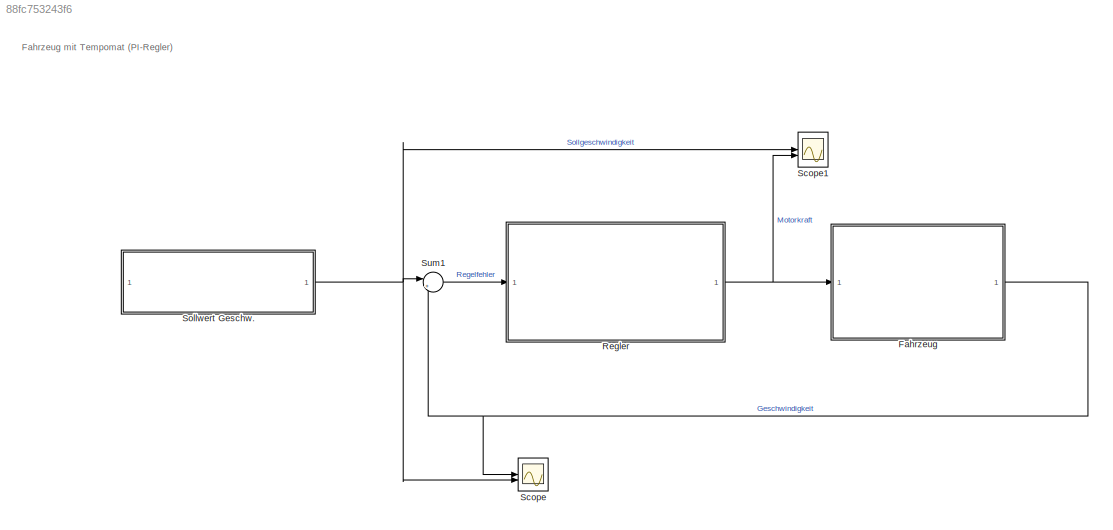
MODEL slx_88fc753243f6
KIND model
CONFIG AbsTol = auto
CONFIG EnableMultiTasking = on
CONFIG FixedStep = dtSim
CONFIG MaxStep = auto
CONFIG MinStep = auto
CONFIG RelTol = 1e-8
CONFIG SampleTimeConstraint = Unconstrained
CONFIG SolverName = FixedStepAuto
CONFIG StartTime = 0.0
CONFIG StopTime = tEnd
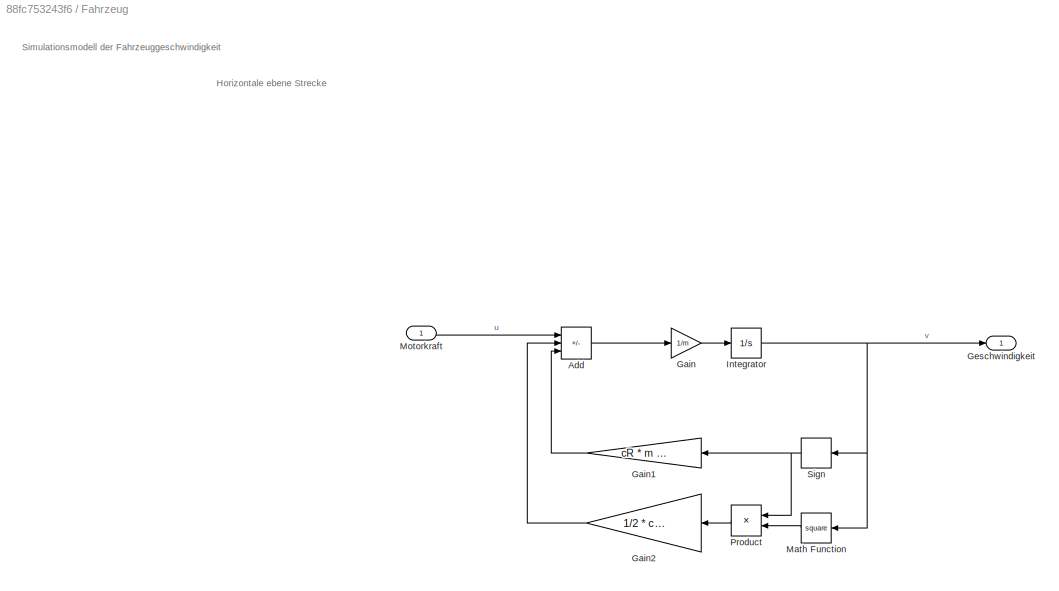
BLOCK [SubSystem] Fahrzeug
BLOCK [Sum] Fahrzeug/Add
  IconShape = rectangular
  Inputs = +--
BLOCK [Gain] Fahrzeug/Gain
  Gain = 1/m
BLOCK [Gain] Fahrzeug/Gain1
  Gain = cR * m * g
BLOCK [Gain] Fahrzeug/Gain2
  Gain = 1/2 * cW * rho * A
BLOCK [Outport] Fahrzeug/Geschwindigkeit
  VectorParamsAs1DForOutWhenUnconnected = off
BLOCK [Integrator] Fahrzeug/Integrator
BLOCK [Math] Fahrzeug/Math Function
  Operator = square
BLOCK [Inport] Fahrzeug/Motorkraft
BLOCK [Product] Fahrzeug/Product
BLOCK [Signum] Fahrzeug/Sign
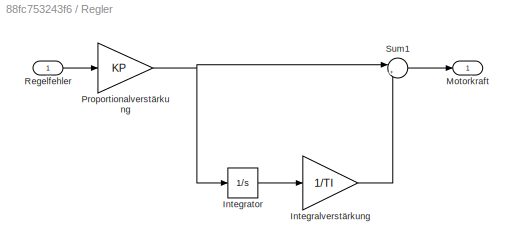
BLOCK [SubSystem] Regler
BLOCK [Gain] Regler/Integralverstärkung
  Gain = 1/TI
BLOCK [Integrator] Regler/Integrator
BLOCK [Outport] Regler/Motorkraft
BLOCK [Gain] Regler/Proportionalverstärkung
  Gain = KP
BLOCK [Inport] Regler/Regelfehler
BLOCK [Sum] Regler/Sum1
  Inputs = |++
BLOCK [Scope] Scope
  Floating = off
  NumInputPorts = 2
  ScopeSpecificationString = Simulink.scopes.TimeScopeBlockCfg('CurrentConfiguration', extmgr.ConfigurationSet(extmgr.Configuration('Core','General UI',true),extmgr.Configuration('Core','Source UI',true),extmgr.Configuration('Sources','WiredSimulink',true),extmgr.Configuration('Visuals','Time Domain',true,'SerializedDisplays',{struct('MinYLimReal','-5.20084','MaxYLimReal','46.80756','YLabelReal','','MinYLimMag','0.00000','Max...<+1396ch>
BLOCK [Scope] Scope1
  Floating = off
  NumInputPorts = 2
  ScopeSpecificationString = Simulink.scopes.TimeScopeBlockCfg('CurrentConfiguration', extmgr.ConfigurationSet(extmgr.Configuration('Core','General UI',true),extmgr.Configuration('Core','Source UI',true),extmgr.Configuration('Sources','WiredSimulink',true,'DataLoggingVariableName','ScopeData1'),extmgr.Configuration('Visuals','Time Domain',true,'SerializedDisplays',{struct('MinYLimReal','-127.63316','MaxYLimReal','1148.69844',...<+1446ch>
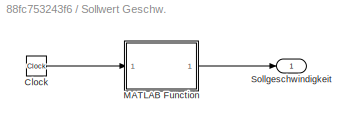
BLOCK [SubSystem] Sollwert Geschw.
BLOCK [Clock] Sollwert Geschw./Clock
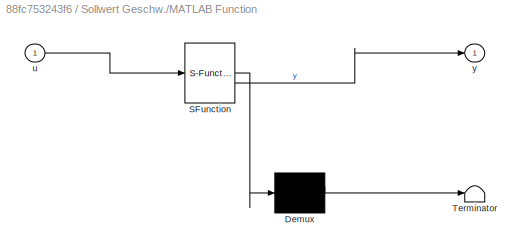
BLOCK [SubSystem] Sollwert Geschw./MATLAB Function
  ErrorFcn = Stateflow.Translate.translate
  LibrarySourceBlock = simulink/User-Defined\nFunctions/MATLAB Function
  PermitHierarchicalResolution = ExplicitOnly
  SFBlockType = MATLAB Function
  TreatAsAtomicUnit = on
BLOCK [Demux] Sollwert Geschw./MATLAB Function/ Demux 
  Outputs = 1
BLOCK [S-Function] Sollwert Geschw./MATLAB Function/ SFunction 
  EnableBusSupport = on
  FunctionName = sf_sfun
  PortCounts = [1 2]
  SFcnIsStateOwnerBlock = off
  SFunctionDeploymentMode = off
  Tag = Stateflow S-Function 2
BLOCK [Terminator] Sollwert Geschw./MATLAB Function/ Terminator 
BLOCK [Inport] Sollwert Geschw./MATLAB Function/u
BLOCK [Outport] Sollwert Geschw./MATLAB Function/y
BLOCK [Outport] Sollwert Geschw./Sollgeschwindigkeit
BLOCK [Sum] Sum1
  Inputs = |+-
ANNOTATION (root): Fahrzeug mit Tempomat (PI-Regler)
ANNOTATION Fahrzeug: Horizontale ebene Strecke
ANNOTATION Fahrzeug: Simulationsmodell der Fahrzeuggeschwindigkeit
LINE Fahrzeug/Add:1 -> Fahrzeug/Gain:1
LINE Fahrzeug/Gain1:1 -> Fahrzeug/Add:3
LINE Fahrzeug/Gain2:1 -> Fahrzeug/Add:2
LINE Fahrzeug/Gain:1 -> Fahrzeug/Integrator:1
NET Fahrzeug/Integrator:1 -> Fahrzeug/Geschwindigkeit:1, Fahrzeug/Math Function:1, Fahrzeug/Sign:1
LINE Fahrzeug/Math Function:1 -> Fahrzeug/Product:2
LINE Fahrzeug/Motorkraft:1 -> Fahrzeug/Add:1
LINE Fahrzeug/Product:1 -> Fahrzeug/Gain2:1
NET Fahrzeug/Sign:1 -> Fahrzeug/Gain1:1, Fahrzeug/Product:1
NET Fahrzeug:1 -> Scope:1, Sum1:2
LINE Regler/Integralverstärkung:1 -> Regler/Sum1:2
LINE Regler/Integrator:1 -> Regler/Integralverstärkung:1
NET Regler/Proportionalverstärkung:1 -> Regler/Integrator:1, Regler/Sum1:1
LINE Regler/Regelfehler:1 -> Regler/Proportionalverstärkung:1
LINE Regler/Sum1:1 -> Regler/Motorkraft:1
NET Regler:1 -> Fahrzeug:1, Scope1:2
LINE Sollwert Geschw./Clock:1 -> Sollwert Geschw./MATLAB Function:1
LINE Sollwert Geschw./MATLAB Function:1 -> Sollwert Geschw./Sollgeschwindigkeit:1
NET Sollwert Geschw.:1 -> Scope1:1, Scope:2, Sum1:1
LINE Sum1:1 -> Regler:1
note: NET lines group one-source signal fan-out (src -> all destinations, sorted); 1:1 wires keep LINE
CHART Sollwert Geschw./MATLAB Function states=1 transitions=1
  STATE_LABEL 'eML_blk_kernel()'
  STATE_LABEL 'SCRIPT:\nfunction y = fcn(u)\n    if u < 100\n        y = 0;\n    elseif u < 1000\n        y = 40;\n    elseif u < 2000\n        y = 20;\n    elseif u < 2500\n        y = 10;\n    else\n        y = 40;\n    end\nend'
CHART  states=0 transitions=0
